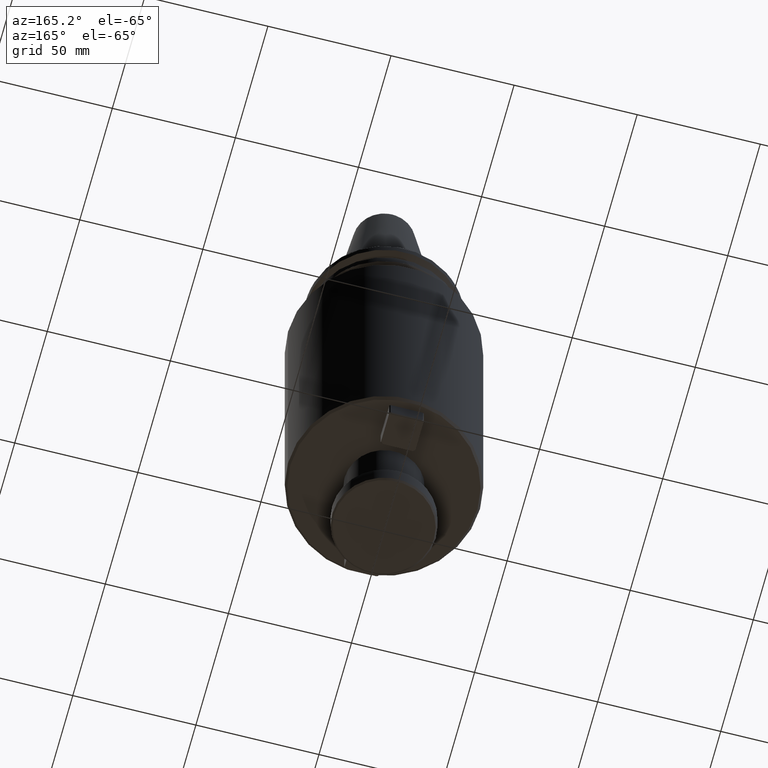
[diagram: clean part render]
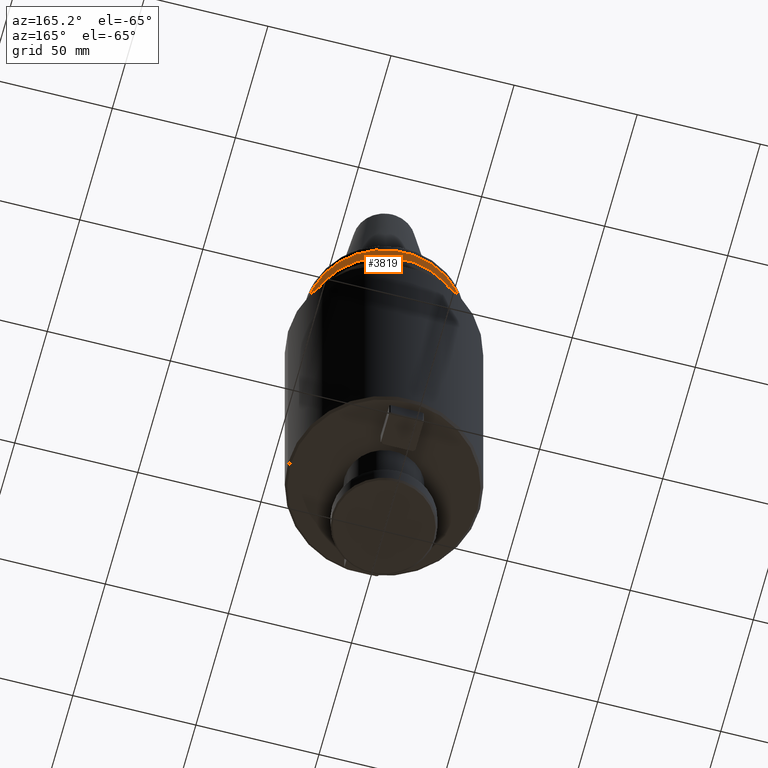
[diagram: same view with one face highlighted and labeled with its STEP entity id]
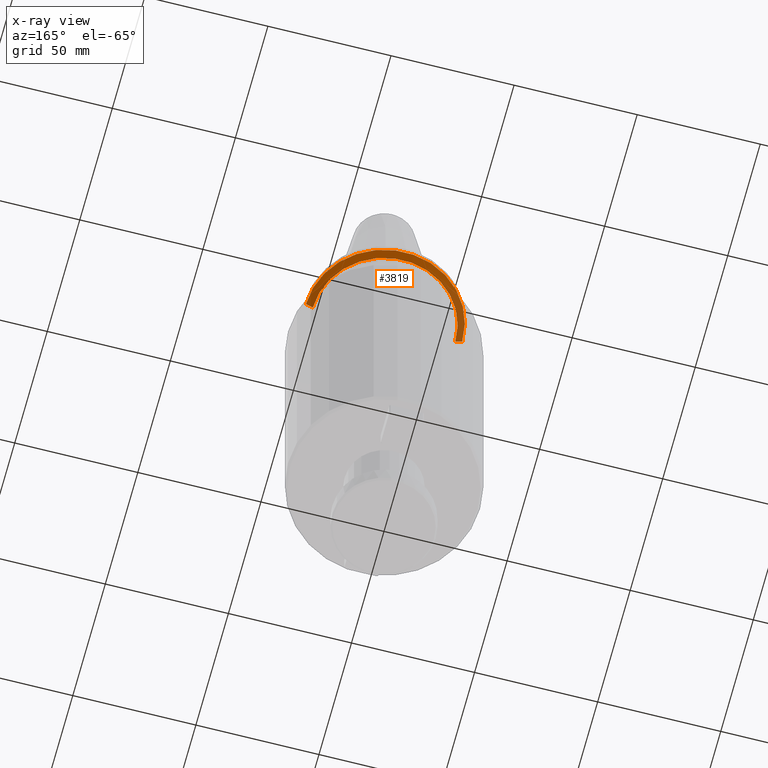
[diagram: x-ray of the same camera — body ghosted, the highlighted face saturated]
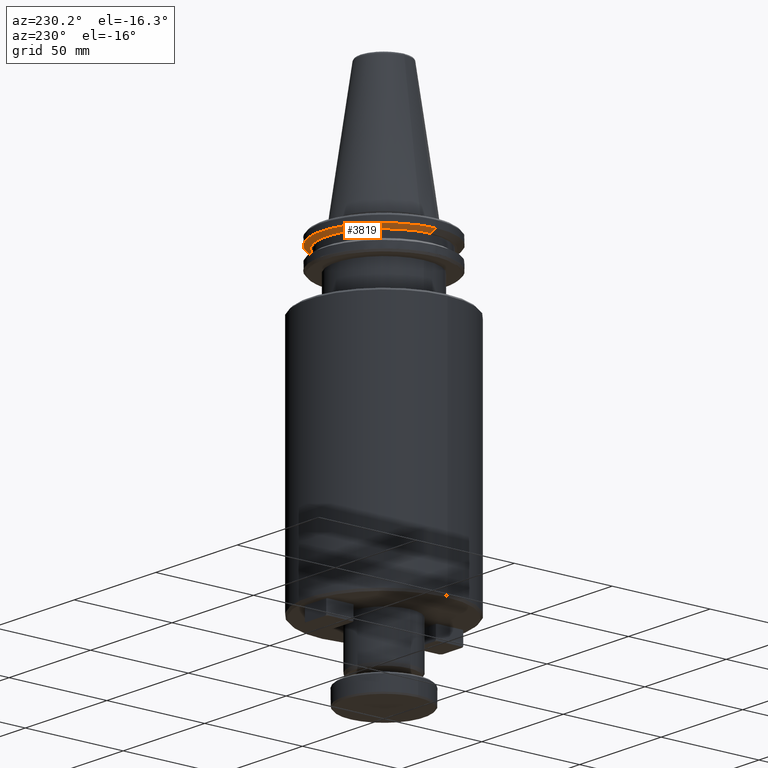
[diagram: same view with one face highlighted and labeled with its STEP entity id]
A machine part, auxiliary view. The second image highlights one B-rep face of the part: STEP entity #3819.
The next image is the same camera in x-ray: the body ghosted, the highlighted face saturated — about 32% of this face is hidden behind the body in this view.
A second angle (auxiliary view) of the same face is appended — the face is thin or edge-on in the first view.
In plain terms, the highlighted conical surface has half-angle 60 deg.
Its self-contained STEP definition (entity closure, byte-faithful):
#45 = ORIENTED_EDGE ( 'NONE', *, *, #2565, .F. ) ;
#269 = AXIS2_PLACEMENT_3D ( 'NONE', #1406, #3704, #1732 ) ;
#285 = DIRECTION ( 'NONE',  ( 1.000000000000000000, 0.0000000000000000000, 0.0000000000000000000 ) ) ;
#290 = CARTESIAN_POINT ( 'NONE',  ( 0.0000000000000000000, 0.0000000000000000000, -7.578163357943284800 ) ) ;
#361 = CONICAL_SURFACE ( 'NONE', #3961, 31.75000000000000000, 1.047197551196598500 ) ;
#382 = DIRECTION ( 'NONE',  ( 0.0000000000000000000, -0.0000000000000000000, 1.000000000000000000 ) ) ;
#590 = VECTOR ( 'NONE', #1034, 1000.000000000000000 ) ;
#765 = CARTESIAN_POINT ( 'NONE',  ( 28.94089653438086500, 0.0000000000000000000, -9.199999999999999300 ) ) ;
#801 = EDGE_CURVE ( 'NONE', #3614, #3265, #3483, .T. ) ;
#988 = CARTESIAN_POINT ( 'NONE',  ( -28.94089653438086500, 3.716245608910637900E-015, -9.199999999999999300 ) ) ;
#1034 = DIRECTION ( 'NONE',  ( 0.8660254037844390400, 0.0000000000000000000, 0.4999999999999993300 ) ) ;
#1209 = CARTESIAN_POINT ( 'NONE',  ( 0.0000000000000000000, 0.0000000000000000000, -9.199999999999999300 ) ) ;
#1370 = LINE ( 'NONE', #3025, #590 ) ;
#1406 = CARTESIAN_POINT ( 'NONE',  ( 0.0000000000000000000, 0.0000000000000000000, -7.578163357943284800 ) ) ;
#1426 = EDGE_LOOP ( 'NONE', ( #3589, #1671, #4222, #45 ) ) ;
#1633 = VECTOR ( 'NONE', #3620, 1000.000000000000000 ) ;
#1671 = ORIENTED_EDGE ( 'NONE', *, *, #801, .T. ) ;
#1732 = DIRECTION ( 'NONE',  ( 1.000000000000000000, 0.0000000000000000000, -5.463695987328526400E-017 ) ) ;
#1801 = AXIS2_PLACEMENT_3D ( 'NONE', #1209, #4106, #2406 ) ;
#2406 = DIRECTION ( 'NONE',  ( 1.000000000000000000, 0.0000000000000000000, 0.0000000000000000000 ) ) ;
#2565 = EDGE_CURVE ( 'NONE', #4224, #3984, #1370, .T. ) ;
#2784 = EDGE_CURVE ( 'NONE', #4224, #3614, #3378, .T. ) ;
#2852 = CARTESIAN_POINT ( 'NONE',  ( 31.75000000000000000, 0.0000000000000000000, -7.578163357943286500 ) ) ;
#3025 = CARTESIAN_POINT ( 'NONE',  ( 31.75000000000000000, 0.0000000000000000000, -7.578163357943284800 ) ) ;
#3175 = CIRCLE ( 'NONE', #269, 31.75000000000000000 ) ;
#3265 = VERTEX_POINT ( 'NONE', #3785 ) ;
#3378 = CIRCLE ( 'NONE', #1801, 28.94089653438086500 ) ;
#3483 = LINE ( 'NONE', #4094, #1633 ) ;
#3589 = ORIENTED_EDGE ( 'NONE', *, *, #2784, .T. ) ;
#3614 = VERTEX_POINT ( 'NONE', #988 ) ;
#3620 = DIRECTION ( 'NONE',  ( -0.8660254037844390400, 1.060575238724907400E-016, 0.4999999999999993300 ) ) ;
#3704 = DIRECTION ( 'NONE',  ( -0.0000000000000000000, -0.0000000000000000000, -1.000000000000000000 ) ) ;
#3785 = CARTESIAN_POINT ( 'NONE',  ( -31.75000000000000000, 3.888253587292846500E-015, -7.578163357943284800 ) ) ;
#3819 = ADVANCED_FACE ( 'NONE', ( #3898 ), #361, .T. ) ;
#3898 = FACE_OUTER_BOUND ( 'NONE', #1426, .T. ) ;
#3961 = AXIS2_PLACEMENT_3D ( 'NONE', #290, #382, #285 ) ;
#3984 = VERTEX_POINT ( 'NONE', #2852 ) ;
#4094 = CARTESIAN_POINT ( 'NONE',  ( -31.75000000000000000, 3.888253587292846500E-015, -7.578163357943284800 ) ) ;
#4106 = DIRECTION ( 'NONE',  ( 0.0000000000000000000, -0.0000000000000000000, 1.000000000000000000 ) ) ;
#4148 = EDGE_CURVE ( 'NONE', #3265, #3984, #3175, .T. ) ;
#4222 = ORIENTED_EDGE ( 'NONE', *, *, #4148, .T. ) ;
#4224 = VERTEX_POINT ( 'NONE', #765 ) ;